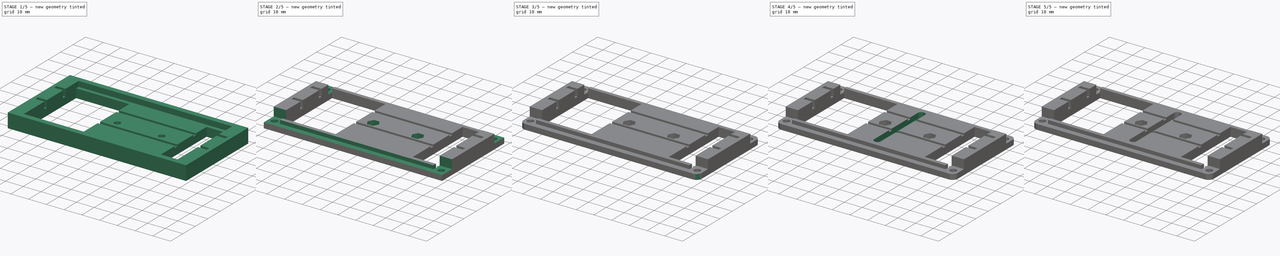
[diagram: build sequence overview — one tinted view per stage of 5, left to right]
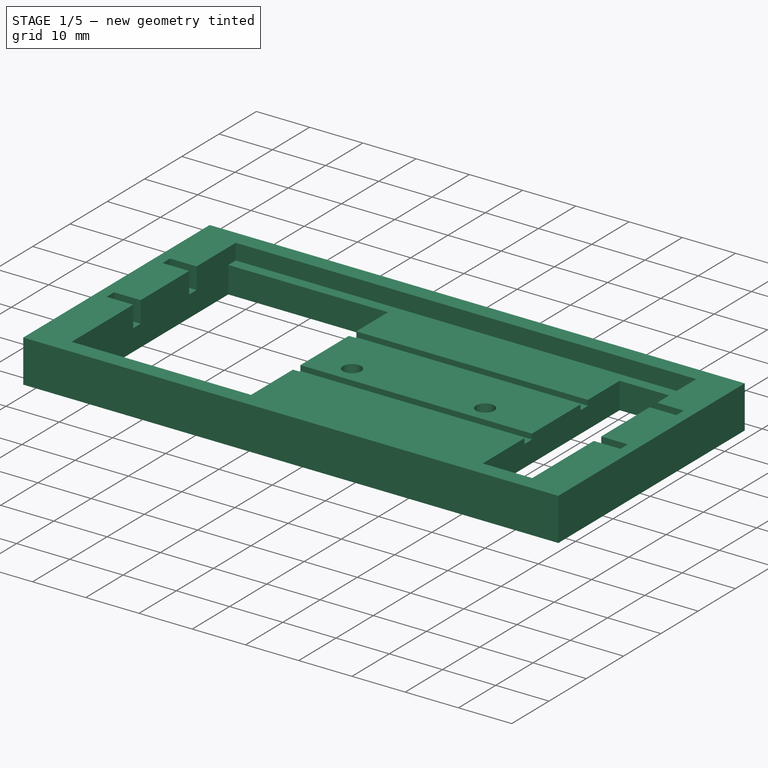
[diagram: stage 1 of 5 — iso view after this stage's code; geometry added in this stage tinted green]
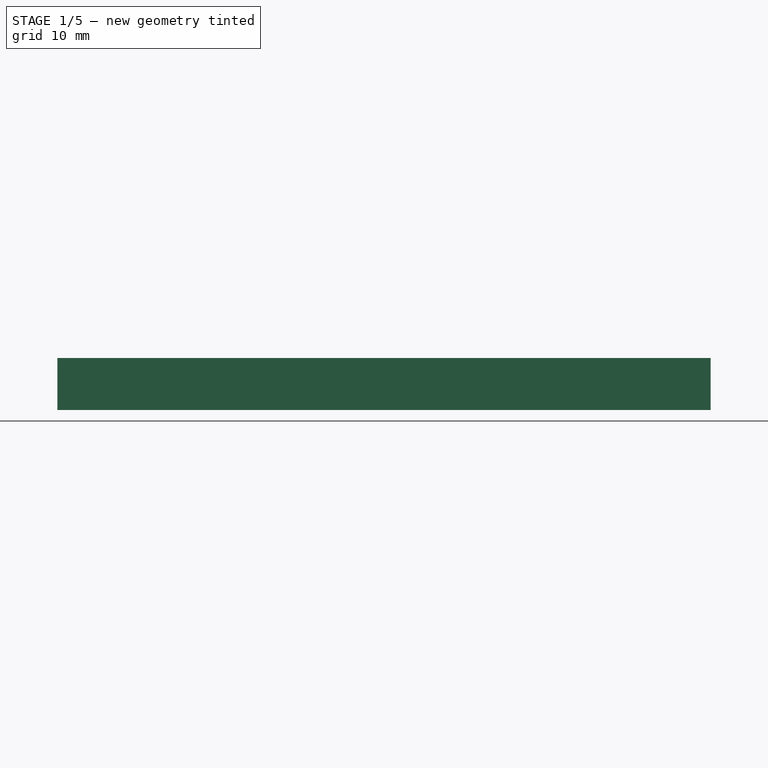
[diagram: stage 1 of 5 — front view after this stage's code; geometry added in this stage tinted green]
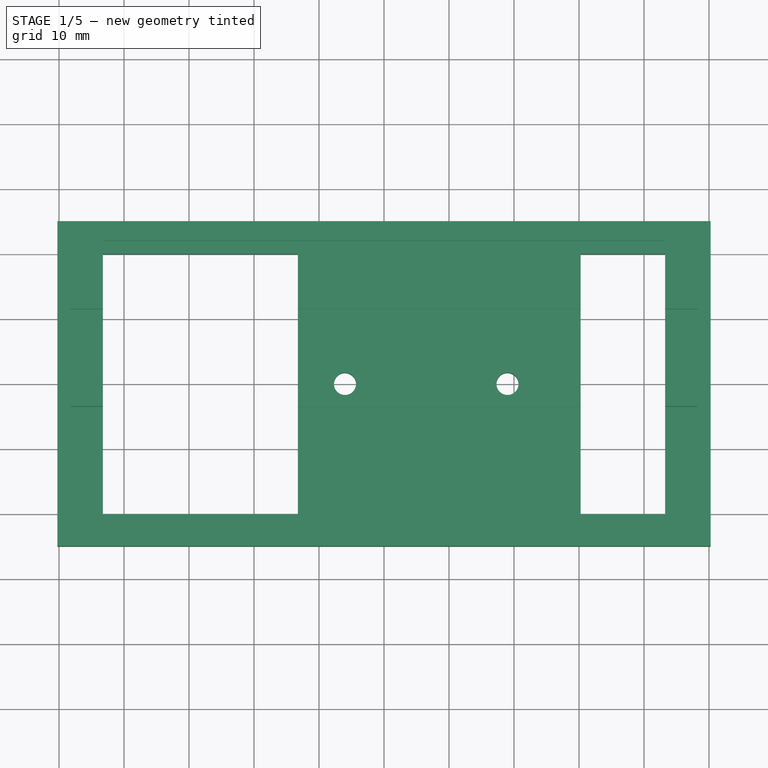
[diagram: stage 1 of 5 — top view after this stage's code; geometry added in this stage tinted green]
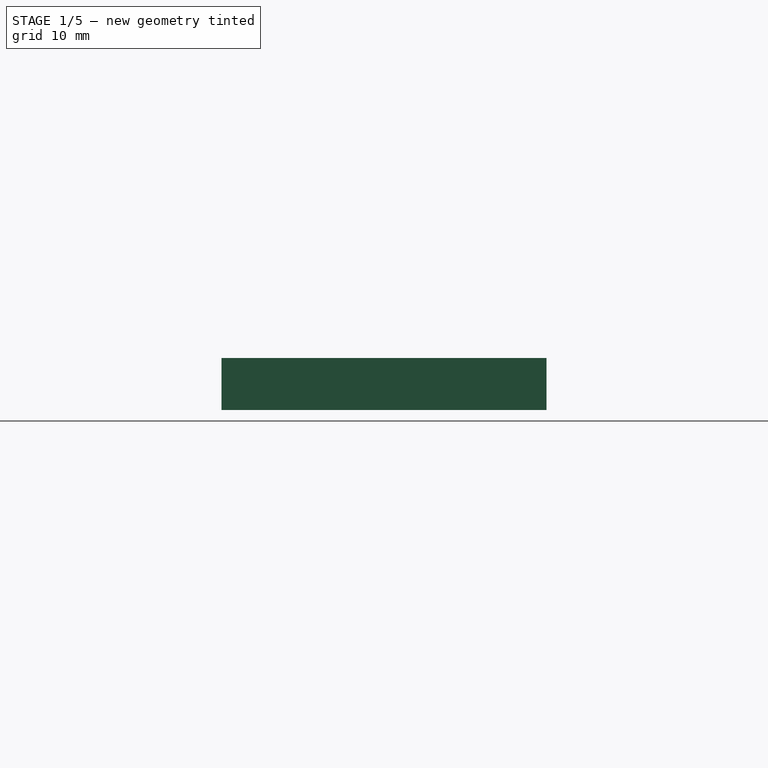
[diagram: stage 1 of 5 — right view after this stage's code; geometry added in this stage tinted green]
FCSTD DOCUMENT  (FreeCAD 0.16R6706 (Git))
Label: MotorDriverMountB
License: All rights reserved
LicenseURL: http://en.wikipedia.org/wiki/All_rights_reserved
objects: Sketcher::SketchObject×8, PartDesign::Pocket×7, PartDesign::Fillet×4, PartDesign::Chamfer×4, PartDesign::Pad×1
note: 32 computed .brp shape members not serialized (recipe doc carries the construction recipe); baked Part::Feature solids carry a one-line shape summary decoded from their .brp

FEATURE [Sketcher::SketchObject] Sketch
  sketch-geometry (35):
    g0: LineSegment StartX=-50.25 StartY=25 StartZ=0 EndX=50.25 EndY=25 EndZ=0
    g1: LineSegment StartX=50.25 StartY=25 StartZ=0 EndX=50.25 EndY=-25 EndZ=0
    g2: LineSegment StartX=50.25 StartY=-25 StartZ=0 EndX=-50.25 EndY=-25 EndZ=0
    g3: LineSegment StartX=-50.25 StartY=-25 StartZ=0 EndX=-50.25 EndY=25 EndZ=0
    g4: LineSegment [constr] StartX=-48.25 StartY=6 StartZ=0 EndX=48.25 EndY=6 EndZ=0
    g5: LineSegment [constr] StartX=48.25 StartY=6 StartZ=0 EndX=48.25 EndY=4 EndZ=0
    g6: LineSegment [constr] StartX=48.25 StartY=4 StartZ=0 EndX=-48.25 EndY=4 EndZ=0
    g7: LineSegment [constr] StartX=-48.25 StartY=4 StartZ=0 EndX=-48.25 EndY=6 EndZ=0
    g8: LineSegment [constr] StartX=-48.25 StartY=-14 StartZ=0 EndX=48.25 EndY=-14 EndZ=0
    g9: LineSegment [constr] StartX=48.25 StartY=-14 StartZ=0 EndX=48.25 EndY=-16 EndZ=0
    g10: LineSegment [constr] StartX=48.25 StartY=-16 StartZ=0 EndX=-48.25 EndY=-16 EndZ=0
    g11: LineSegment [constr] StartX=-48.25 StartY=-16 StartZ=0 EndX=-48.25 EndY=-14 EndZ=0
    g12: LineSegment [constr] StartX=-48.25 StartY=4 StartZ=0 EndX=-48.25 EndY=-14 EndZ=0
    g13: LineSegment [constr] StartX=48.25 StartY=4 StartZ=0 EndX=48.25 EndY=-14 EndZ=0
    g14: Circle [constr] CenterX=23.25 CenterY=0 CenterZ=0 NormalX=0 NormalY=0 NormalZ=1 Radius=19
    g15: LineSegment StartX=-43.25 StartY=20 StartZ=0 EndX=-13.25 EndY=20 EndZ=0
    g16: LineSegment StartX=-13.25 StartY=20 StartZ=0 EndX=-13.25 EndY=-20 EndZ=0
    g17: LineSegment StartX=-13.25 StartY=-20 StartZ=0 EndX=-43.25 EndY=-20 EndZ=0
    g18: LineSegment StartX=-43.25 StartY=-20 StartZ=0 EndX=-43.25 EndY=20 EndZ=0
    g19: LineSegment [constr] StartX=7.25 StartY=16 StartZ=0 EndX=39.25 EndY=16 EndZ=0
    g20: LineSegment [constr] StartX=39.25 StartY=16 StartZ=0 EndX=39.25 EndY=-16 EndZ=0
    g21: LineSegment [constr] StartX=39.25 StartY=-16 StartZ=0 EndX=7.25 EndY=-16 EndZ=0
    g22: LineSegment [constr] StartX=7.25 StartY=-16 StartZ=0 EndX=7.25 EndY=16 EndZ=0
    g23: Circle [constr] CenterX=7.25 CenterY=16 CenterZ=0 NormalX=0 NormalY=0 NormalZ=1 Radius=1.7
    g24: Circle [constr] CenterX=39.25 CenterY=16 CenterZ=0 NormalX=0 NormalY=0 NormalZ=1 Radius=1.7
    g25: Circle [constr] CenterX=39.25 CenterY=-16 CenterZ=0 NormalX=0 NormalY=0 NormalZ=1 Radius=1.7
    g26: Circle [constr] CenterX=7.25 CenterY=-16 CenterZ=0 NormalX=0 NormalY=0 NormalZ=1 Radius=1.7
    g27: LineSegment StartX=30.25 StartY=20 StartZ=0 EndX=43.25 EndY=20 EndZ=0
    g28: LineSegment StartX=43.25 StartY=20 StartZ=0 EndX=43.25 EndY=-20 EndZ=0
    g29: LineSegment StartX=43.25 StartY=-20 StartZ=0 EndX=30.25 EndY=-20 EndZ=0
    g30: LineSegment StartX=30.25 StartY=-20 StartZ=0 EndX=30.25 EndY=20 EndZ=0
    g31: LineSegment [constr] StartX=-13.25 StartY=20 StartZ=0 EndX=30.25 EndY=20 EndZ=0
    g32: LineSegment [constr] StartX=-13.25 StartY=-20 StartZ=0 EndX=30.25 EndY=-20 EndZ=0
    g33: Circle CenterX=-6 CenterY=0 CenterZ=0 NormalX=0 NormalY=0 NormalZ=1 Radius=1.7
    g34: Circle CenterX=19 CenterY=0 CenterZ=0 NormalX=0 NormalY=0 NormalZ=1 Radius=1.7
  constraints (96):
    c: Coincident(g0,g1)
    c: Coincident(g1,g2)
    c: Coincident(g2,g3)
    c: Coincident(g3,g0)
    c: Horizontal(g0)
    c: Horizontal(g2)
    c: Vertical(g1)
    c: Vertical(g3)
    c: Coincident(g4,g5)
    c: Coincident(g5,g6)
    c: Coincident(g6,g7)
    c: Coincident(g7,g4)
    c: Horizontal(g4)
    c: Horizontal(g6)
    c: Vertical(g5)
    c: Vertical(g7)
    c: Coincident(g8,g9)
    c: Coincident(g9,g10)
    c: Coincident(g10,g11)
    c: Coincident(g11,g8)
    c: Horizontal(g8)
    c: Horizontal(g10)
    c: Vertical(g9)
    c: Vertical(g11)
    c: Symmetric(g0,g2,g-1)
    c: DistanceY(g1,g0) = 50
    c: Symmetric(g4,g4,g-2)
    c: DistanceX(g4,g4) = 96.5
    c: DistanceX(g4,g0) = 2
    c: Coincident(g12,g6)
    c: Vertical(g12)
    c: Coincident(g8,g12)
    c: Coincident(g13,g5)
    c: Coincident(g13,g8)
    c: Vertical(g13)
    c: DistanceY(g6,g4) = 2
    c: DistanceY(g10,g8) = 2
    c: DistanceY(g8,g5) = 18
    c: PointOnObject(g14,g-1)
    c: Radius(g14) = 19
    c: DistanceX(g14,g0) = 27
    c: DistanceY(g1,g9) = 9
    c: Coincident(g15,g16)
    c: Coincident(g16,g17)
    c: Coincident(g17,g18)
    c: Coincident(g18,g15)
    c: Horizontal(g15)
    c: Horizontal(g17)
    c: Vertical(g16)
    c: Vertical(g18)
    c: Symmetric(g15,g17,g-1)
    c: DistanceX(g4,g15) = 5
    c: DistanceY(g17,g15) = 40
    c: DistanceX(g15,g15) = 30
    c: Coincident(g19,g20)
    c: Coincident(g20,g21)
    c: Coincident(g21,g22)
    c: Coincident(g22,g19)
    c: Horizontal(g19)
    c: Horizontal(g21)
    c: Vertical(g20)
    c: Vertical(g22)
    c: Symmetric(g20,g19,g14)
    c: DistanceX(g19,g19) = 32
    c: Coincident(g23,g19)
    c: Coincident(g24,g19)
    c: Radius(g26) = 1.7
    c: Equal(g26,g25)
    c: Equal(g26,g24)
    c: Equal(g26,g23)
    c: Coincident(g26,g21)
    c: Coincident(g25,g20)
    c: Equal(g22,g19)
    c: DistanceX(g2,g1) = 100.5
    c: Coincident(g27,g28)
    c: Coincident(g28,g29)
    c: Coincident(g29,g30)
    c: Coincident(g30,g27)
    c: Horizontal(g27)
    c: Horizontal(g29)
    c: Vertical(g28)
    c: Vertical(g30)
    c: Coincident(g31,g15)
    c: Horizontal(g31)
    c: Coincident(g32,g16)
    c: Coincident(g32,g29)
    c: Horizontal(g32)
    c: Coincident(g31,g27)
    c: DistanceX(g29,g28) = 13
    c: DistanceX(g28,g9) = 5
    c: Radius(g34) = 1.7
    c: Equal(g34,g33)
    c: PointOnObject(g34,g-1)
    c: PointOnObject(g33,g-1)
    c: DistanceX(g33,g34) = 25
    c: DistanceX(g33,g-1) = 6
FEATURE [PartDesign::Pad] Pad
  Length = 8
  Length2 = 100
  Sketch = -> Sketch
  Type = 0
FEATURE [Sketcher::SketchObject] Sketch001
  Placement = pos=(0,0,8) rot=(0,0,1;0rad)
  Support = -> Pad [Face16]
  sketch-geometry (4):
    g0: LineSegment StartX=-43.25 StartY=22 StartZ=0 EndX=43.25 EndY=22 EndZ=0
    g1: LineSegment StartX=43.25 StartY=22 StartZ=0 EndX=43.25 EndY=-22 EndZ=0
    g2: LineSegment StartX=43.25 StartY=-22 StartZ=0 EndX=-43.25 EndY=-22 EndZ=0
    g3: LineSegment StartX=-43.25 StartY=-22 StartZ=0 EndX=-43.25 EndY=22 EndZ=0
  constraints (11):
    c: Coincident(g0,g1)
    c: Coincident(g1,g2)
    c: Coincident(g2,g3)
    c: Coincident(g3,g0)
    c: Horizontal(g0)
    c: Horizontal(g2)
    c: Vertical(g1)
    c: Vertical(g3)
    c: Symmetric(g0,g1,g-1)
    c: DistanceY(g2,g0) = 44
    c: DistanceX(g0,g0) = 86.5
FEATURE [PartDesign::Pocket] Pocket
  Length = 3
  Sketch = -> Sketch001
  Type = 0
FEATURE [Sketcher::SketchObject] Sketch002
  Placement = pos=(0,0,8) rot=(0,0,1;0rad)
  Support = -> Pocket [Face5]
  sketch-geometry (10):
    g0: LineSegment StartX=-48.25 StartY=11.5 StartZ=0 EndX=48.25 EndY=11.5 EndZ=0
    g1: LineSegment StartX=48.25 StartY=11.5 StartZ=0 EndX=48.25 EndY=9.5 EndZ=0
    g2: LineSegment StartX=48.25 StartY=9.5 StartZ=0 EndX=-48.25 EndY=9.5 EndZ=0
    g3: LineSegment StartX=-48.25 StartY=9.5 StartZ=0 EndX=-48.25 EndY=11.5 EndZ=0
    g4: LineSegment StartX=-48.25 StartY=-3.5 StartZ=0 EndX=48.25 EndY=-3.5 EndZ=0
    g5: LineSegment StartX=48.25 StartY=-3.5 StartZ=0 EndX=48.25 EndY=-5.5 EndZ=0
    g6: LineSegment StartX=48.25 StartY=-5.5 StartZ=0 EndX=-48.25 EndY=-5.5 EndZ=0
    g7: LineSegment StartX=-48.25 StartY=-5.5 StartZ=0 EndX=-48.25 EndY=-3.5 EndZ=0
    g8: LineSegment [constr] StartX=-48.25 StartY=9.5 StartZ=0 EndX=-48.25 EndY=-3.5 EndZ=0
    g9: LineSegment [constr] StartX=48.25 StartY=9.5 StartZ=0 EndX=48.25 EndY=-3.5 EndZ=0
  constraints (28):
    c: Coincident(g0,g1)
    c: Coincident(g1,g2)
    c: Coincident(g2,g3)
    c: Coincident(g3,g0)
    c: Horizontal(g0)
    c: Horizontal(g2)
    c: Vertical(g1)
    c: Vertical(g3)
    c: Coincident(g4,g5)
    c: Coincident(g5,g6)
    c: Coincident(g6,g7)
    c: Coincident(g7,g4)
    c: Horizontal(g4)
    c: Horizontal(g6)
    c: Vertical(g5)
    c: Vertical(g7)
    c: Symmetric(g0,g0,g-2)
    c: DistanceY(g1,g0) = 2
    c: DistanceX(g0,g0) = 96.5
    c: DistanceY(g5,g4) = 2
    c: Coincident(g8,g2)
    c: Coincident(g8,g4)
    c: Vertical(g8)
    c: Coincident(g9,g1)
    c: Coincident(g9,g4)
    c: Vertical(g9)
    c: DistanceY(g4,g0) = 15
    c: DistanceY(g-1,g2) = 9.5
FEATURE [PartDesign::Pocket] Pocket001
  Length = 4
  Sketch = -> Sketch002
  Type = 0
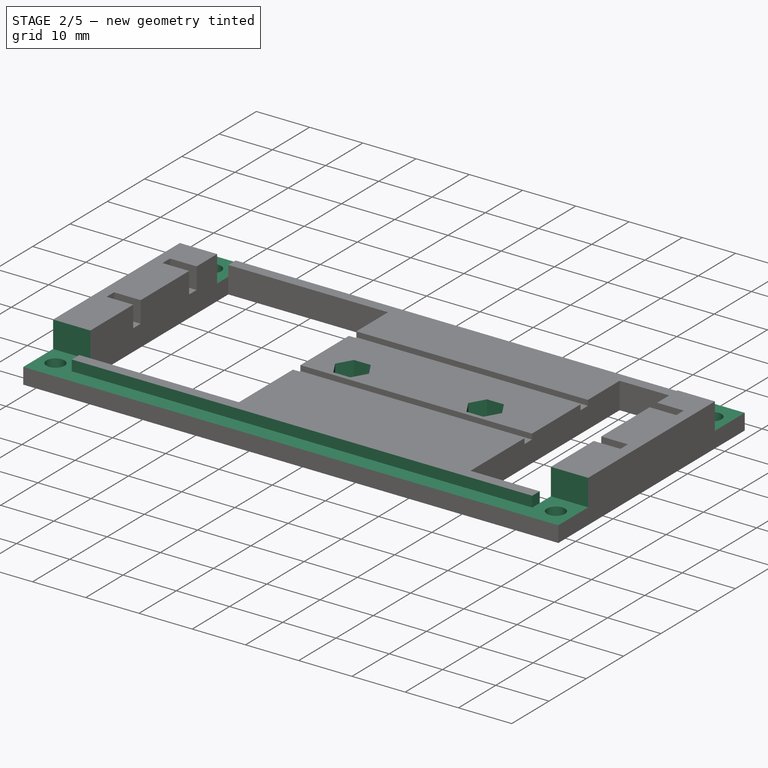
[diagram: stage 2 of 5 — iso view after this stage's code; geometry added in this stage tinted green]
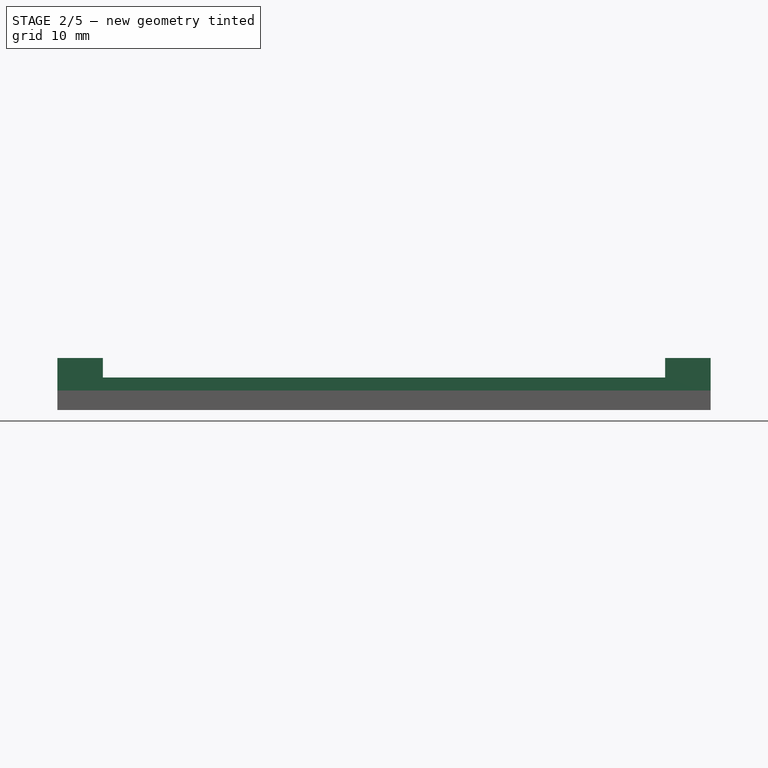
[diagram: stage 2 of 5 — front view after this stage's code; geometry added in this stage tinted green]
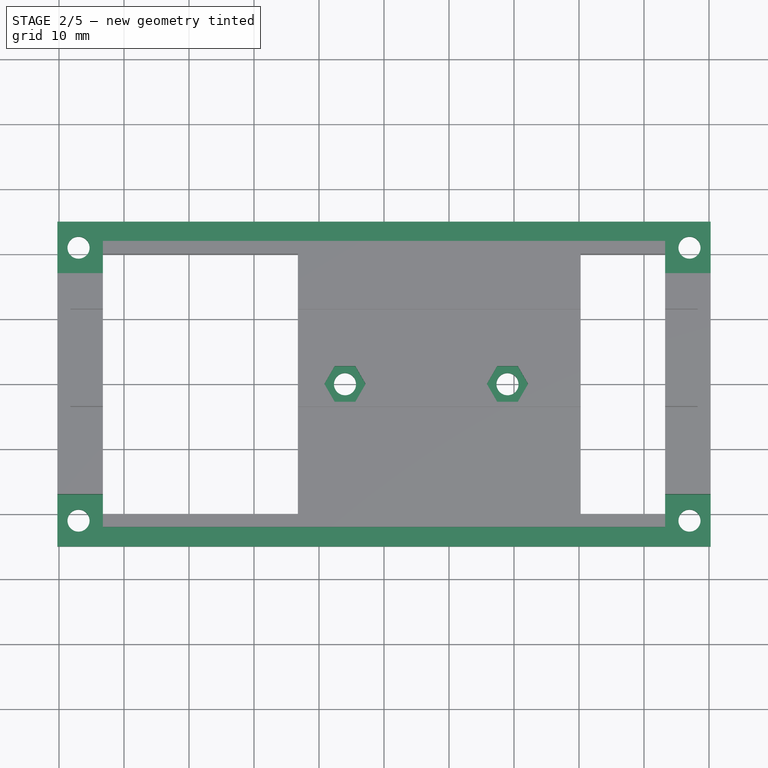
[diagram: stage 2 of 5 — top view after this stage's code; geometry added in this stage tinted green]
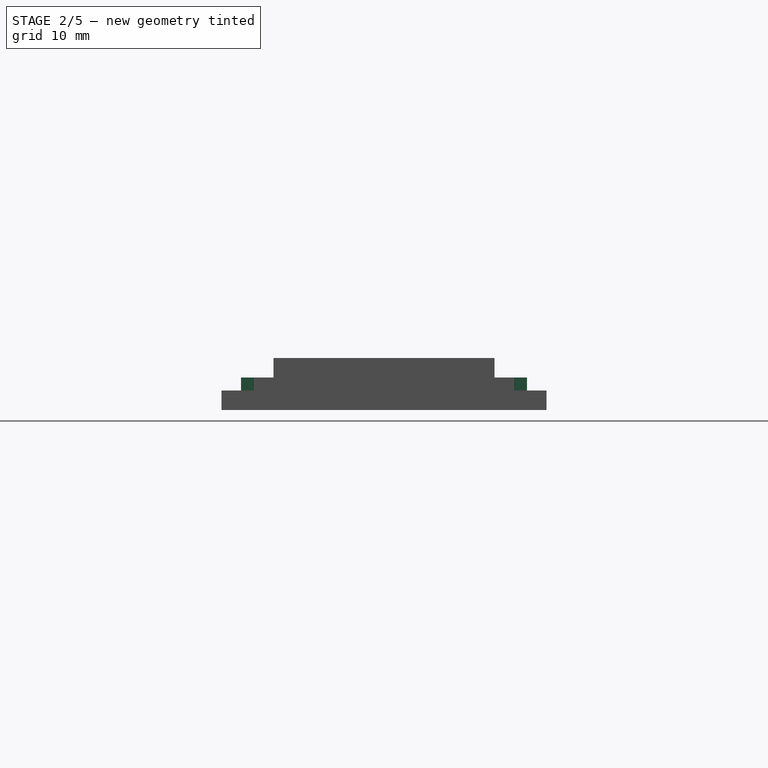
[diagram: stage 2 of 5 — right view after this stage's code; geometry added in this stage tinted green]
FEATURE [Sketcher::SketchObject] Sketch004
  Placement = pos=(0,0,8) rot=(0,0,1;0rad)
  Support = -> Pocket001 [Face5]
  sketch-geometry (18):
    g0: LineSegment StartX=-50.25 StartY=25 StartZ=0 EndX=50.25 EndY=25 EndZ=0
    g1: LineSegment StartX=50.25 StartY=25 StartZ=0 EndX=50.25 EndY=17 EndZ=0
    g2: LineSegment StartX=-50.25 StartY=17 StartZ=0 EndX=-50.25 EndY=25 EndZ=0
    g3: LineSegment StartX=50.25 StartY=-17 StartZ=0 EndX=50.25 EndY=-25 EndZ=0
    g4: LineSegment StartX=50.25 StartY=-25 StartZ=0 EndX=-50.25 EndY=-25 EndZ=0
    g5: LineSegment StartX=-50.25 StartY=-25 StartZ=0 EndX=-50.25 EndY=-17 EndZ=0
    g6: LineSegment [constr] StartX=-50.25 StartY=17 StartZ=0 EndX=-50.25 EndY=-17 EndZ=0
    g7: LineSegment [constr] StartX=50.25 StartY=17 StartZ=0 EndX=50.25 EndY=-17 EndZ=0
    g8: LineSegment StartX=-50.25 StartY=17 StartZ=0 EndX=-43.25 EndY=17 EndZ=0
    g9: LineSegment StartX=-43.25 StartY=17 StartZ=0 EndX=-43.25 EndY=22 EndZ=0
    g10: LineSegment StartX=-43.25 StartY=22 StartZ=0 EndX=43.25 EndY=22 EndZ=0
    g11: LineSegment StartX=50.25 StartY=17 StartZ=0 EndX=43.25 EndY=17 EndZ=0
    g12: LineSegment StartX=43.25 StartY=22 StartZ=0 EndX=43.25 EndY=17 EndZ=0
    g13: LineSegment StartX=-50.25 StartY=-17 StartZ=0 EndX=-43.25 EndY=-17 EndZ=0
    g14: LineSegment StartX=-43.25 StartY=-17 StartZ=0 EndX=-43.25 EndY=-22 EndZ=0
    g15: LineSegment StartX=-43.25 StartY=-22 StartZ=0 EndX=43.25 EndY=-22 EndZ=0
    g16: LineSegment StartX=43.25 StartY=-22 StartZ=0 EndX=43.25 EndY=-17 EndZ=0
    g17: LineSegment StartX=43.25 StartY=-17 StartZ=0 EndX=50.25 EndY=-17 EndZ=0
  constraints (48):
    c: Coincident(g0,g1)
    c: Coincident(g2,g0)
    c: Horizontal(g0)
    c: Vertical(g1)
    c: Vertical(g2)
    c: Coincident(g3,g4)
    c: Coincident(g4,g5)
    c: Horizontal(g4)
    c: Vertical(g3)
    c: Vertical(g5)
    c: Vertical(g6)
    c: Coincident(g7,g1)
    c: Vertical(g7)
    c: Equal(g5,g2)
    c: DistanceX(g0,g0) = 100.5
    c: Symmetric(g4,g0,g-1)
    c: DistanceY(g3,g0) = 50
    c: Coincident(g6,g5)
    c: Coincident(g2,g6)
    c: Coincident(g7,g3)
    c: Horizontal(g8)
    c: Coincident(g9,g8)
    c: Vertical(g9)
    c: Coincident(g10,g9)
    c: Horizontal(g10)
    c: Coincident(g11,g1)
    c: Horizontal(g11)
    c: Coincident(g12,g11)
    c: Vertical(g12)
    c: Coincident(g12,g10)
    c: DistanceY(g9,g0) = 3
    c: DistanceX(g2,g8) = 7
    c: DistanceY(g2,g0) = 8
    c: Symmetric(g11,g8,g-2)
    c: Coincident(g5,g13)
    c: Horizontal(g13)
    c: Coincident(g13,g14)
    c: Vertical(g14)
    c: Coincident(g14,g15)
    c: Horizontal(g15)
    c: Coincident(g15,g16)
    c: Vertical(g16)
    c: Coincident(g16,g17)
    c: Horizontal(g17)
    c: Coincident(g3,g17)
    c: Symmetric(g16,g11,g-1)
    c: Symmetric(g14,g9,g-1)
    c: Coincident(g8,g2)
FEATURE [PartDesign::Pocket] Pocket003
  Length = 5
  Sketch = -> Sketch004
  Type = 0
FEATURE [Sketcher::SketchObject] Sketch005
  Placement = pos=(0,0,3) rot=(0,0,1;0rad)
  Support = -> Pocket003 [Face4]
  sketch-geometry (8):
    g0: Circle CenterX=-47 CenterY=21 CenterZ=0 NormalX=0 NormalY=0 NormalZ=1 Radius=1.7
    g1: LineSegment [constr] StartX=-47 StartY=21 StartZ=0 EndX=47 EndY=21 EndZ=0
    g2: LineSegment [constr] StartX=47 StartY=21 StartZ=0 EndX=47 EndY=-21 EndZ=0
    g3: LineSegment [constr] StartX=47 StartY=-21 StartZ=0 EndX=-47 EndY=-21 EndZ=0
    g4: LineSegment [constr] StartX=-47 StartY=-21 StartZ=0 EndX=-47 EndY=21 EndZ=0
    g5: Circle CenterX=47 CenterY=21 CenterZ=0 NormalX=0 NormalY=0 NormalZ=1 Radius=1.7
    g6: Circle CenterX=47 CenterY=-21 CenterZ=0 NormalX=0 NormalY=0 NormalZ=1 Radius=1.7
    g7: Circle CenterX=-47 CenterY=-21 CenterZ=0 NormalX=0 NormalY=0 NormalZ=1 Radius=1.7
  constraints (19):
    c: Coincident(g1,g2)
    c: Coincident(g2,g3)
    c: Coincident(g3,g4)
    c: Coincident(g4,g1)
    c: Horizontal(g1)
    c: Horizontal(g3)
    c: Vertical(g2)
    c: Vertical(g4)
    c: Coincident(g1,g0)
    c: Symmetric(g0,g2,g-1)
    c: Coincident(g5,g1)
    c: Coincident(g6,g2)
    c: Coincident(g7,g3)
    c: Radius(g5) = 1.7
    c: Equal(g5,g6)
    c: Equal(g5,g7)
    c: Equal(g5,g0)
    c: DistanceY(g3,g0) = 42
    c: DistanceX(g0,g1) = 94
FEATURE [PartDesign::Pocket] Pocket004
  Length = 5
  Sketch = -> Sketch005
  Type = 1
FEATURE [Sketcher::SketchObject] Sketch006
  Placement = pos=(0,0,5) rot=(0,0,1;0rad)
  Support = -> Pocket004 [Face31]
  sketch-geometry (14):
    g0: LineSegment StartX=-7.58771 StartY=2.75 StartZ=0 EndX=-9.17543 EndY=-1e-12 EndZ=0
    g1: LineSegment StartX=-9.17543 StartY=-1e-12 StartZ=0 EndX=-7.58771 EndY=-2.75 EndZ=0
    g2: LineSegment StartX=-7.58771 StartY=-2.75 StartZ=0 EndX=-4.41229 EndY=-2.75 EndZ=0
    g3: LineSegment StartX=-4.41229 StartY=-2.75 StartZ=0 EndX=-2.82457 EndY=-1e-12 EndZ=0
    g4: LineSegment StartX=-2.82457 StartY=-1e-12 StartZ=0 EndX=-4.41229 EndY=2.75 EndZ=0
    g5: LineSegment StartX=-4.41229 StartY=2.75 StartZ=0 EndX=-7.58771 EndY=2.75 EndZ=0
    g6: Circle [constr] CenterX=-6 CenterY=0 CenterZ=0 NormalX=0 NormalY=0 NormalZ=1 Radius=3.17543
    g7: LineSegment StartX=17.4123 StartY=2.75 StartZ=0 EndX=15.8246 EndY=0 EndZ=0
    g8: LineSegment StartX=15.8246 StartY=0 StartZ=0 EndX=17.4123 EndY=-2.75 EndZ=0
    g9: LineSegment StartX=17.4123 StartY=-2.75 StartZ=0 EndX=20.5877 EndY=-2.75 EndZ=0
    g10: LineSegment StartX=20.5877 StartY=-2.75 StartZ=0 EndX=22.1754 EndY=0 EndZ=0
    g11: LineSegment StartX=22.1754 StartY=0 StartZ=0 EndX=20.5877 EndY=2.75 EndZ=0
    g12: LineSegment StartX=20.5877 StartY=2.75 StartZ=0 EndX=17.4123 EndY=2.75 EndZ=0
    g13: Circle [constr] CenterX=19 CenterY=0 CenterZ=0 NormalX=0 NormalY=0 NormalZ=1 Radius=3.17543
  constraints (34):
    c: Coincident(g0,g1)
    c: Coincident(g1,g2)
    c: Coincident(g2,g3)
    c: Coincident(g3,g4)
    c: Coincident(g4,g5)
    c: Coincident(g5,g0)
    c: Equal(g0, g1-g5) x5
    c: PointOnObject(g0,g6)
    c: PointOnObject(g1,g6)
    c: PointOnObject(g2,g6)
    c: PointOnObject(g3,g6)
    c: PointOnObject(g4,g6)
    c: PointOnObject(g5,g6)
    c: PointOnObject(g6,g-1)
    c: Coincident(g7,g8)
    c: Coincident(g8,g9)
    c: Coincident(g9,g10)
    c: Coincident(g10,g11)
    c: Coincident(g11,g12)
    c: Coincident(g12,g7)
    c: Equal(g7, g8-g12) x5
    c: PointOnObject(g7,g13)
    c: PointOnObject(g8,g13)
    c: PointOnObject(g9,g13)
    c: PointOnObject(g10,g13)
    c: PointOnObject(g11,g13)
    c: PointOnObject(g12,g13)
    c: PointOnObject(g13,g-1)
    c: DistanceX(g6,g13) = 25
    c: DistanceX(g6,g-1) = 6
    c: Horizontal(g2)
    c: Horizontal(g9)
    c: DistanceY(g9,g11) = 5.5
    c: DistanceY(g2,g4) = 5.5
FEATURE [PartDesign::Pocket] Pocket005
  Length = 3
  Sketch = -> Sketch006
  Type = 0
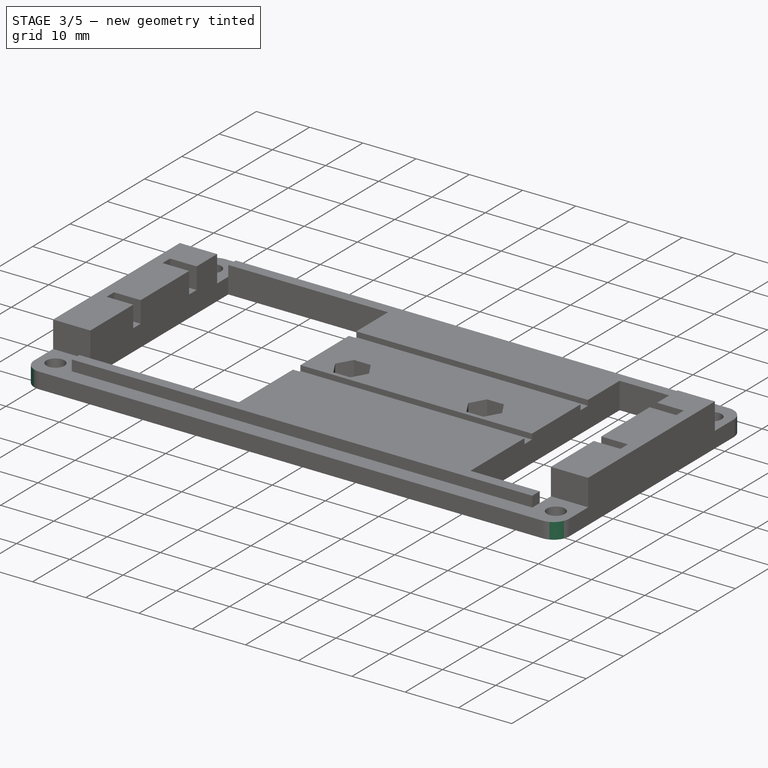
[diagram: stage 3 of 5 — iso view after this stage's code; geometry added in this stage tinted green]
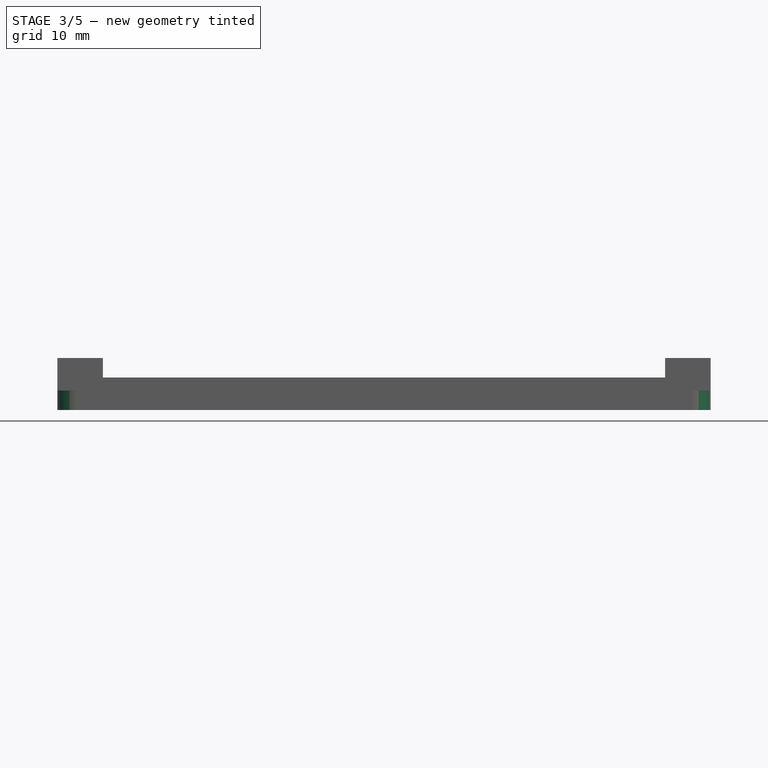
[diagram: stage 3 of 5 — front view after this stage's code; geometry added in this stage tinted green]
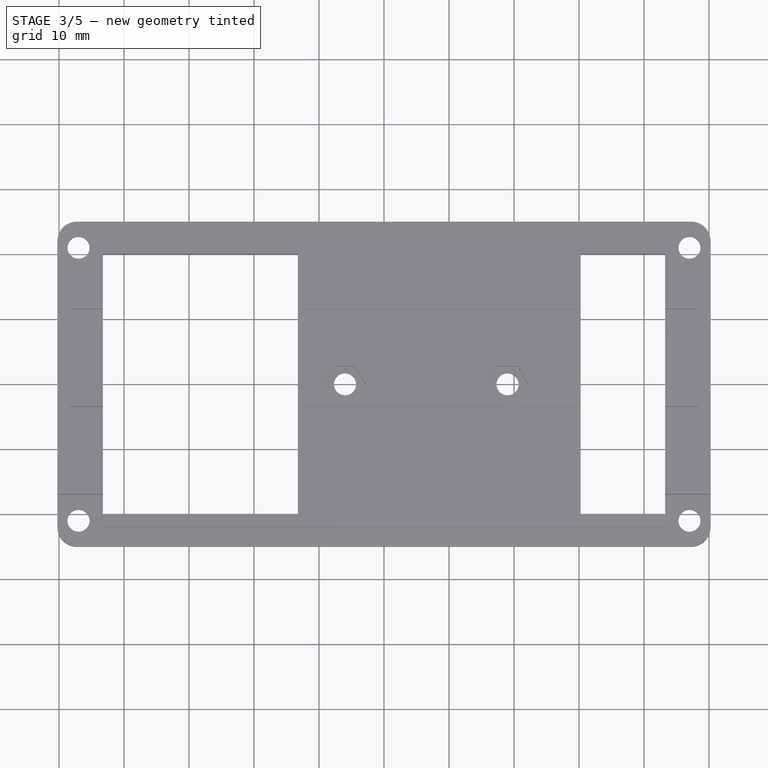
[diagram: stage 3 of 5 — top view after this stage's code; geometry added in this stage tinted green]
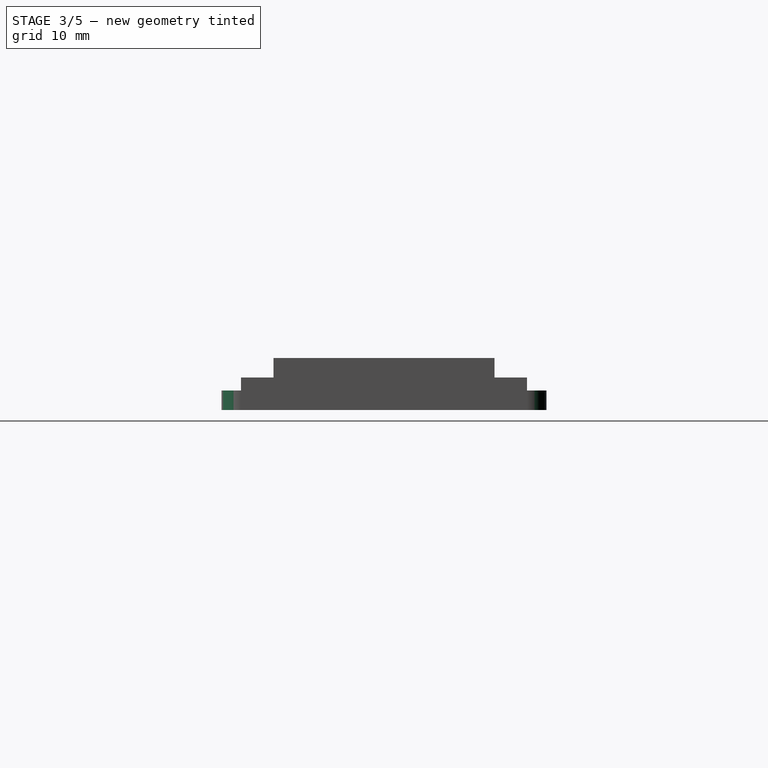
[diagram: stage 3 of 5 — right view after this stage's code; geometry added in this stage tinted green]
FEATURE [PartDesign::Fillet] Fillet
  Base = -> Pocket005 [Edge42]
  Radius = 3
FEATURE [PartDesign::Fillet] Fillet001
  Base = -> Fillet [Edge21]
  Radius = 3
FEATURE [PartDesign::Fillet] Fillet002
  Base = -> Fillet001 [Edge34]
  Radius = 3
FEATURE [PartDesign::Fillet] Fillet003
  Base = -> Fillet002 [Edge29]
  Radius = 3
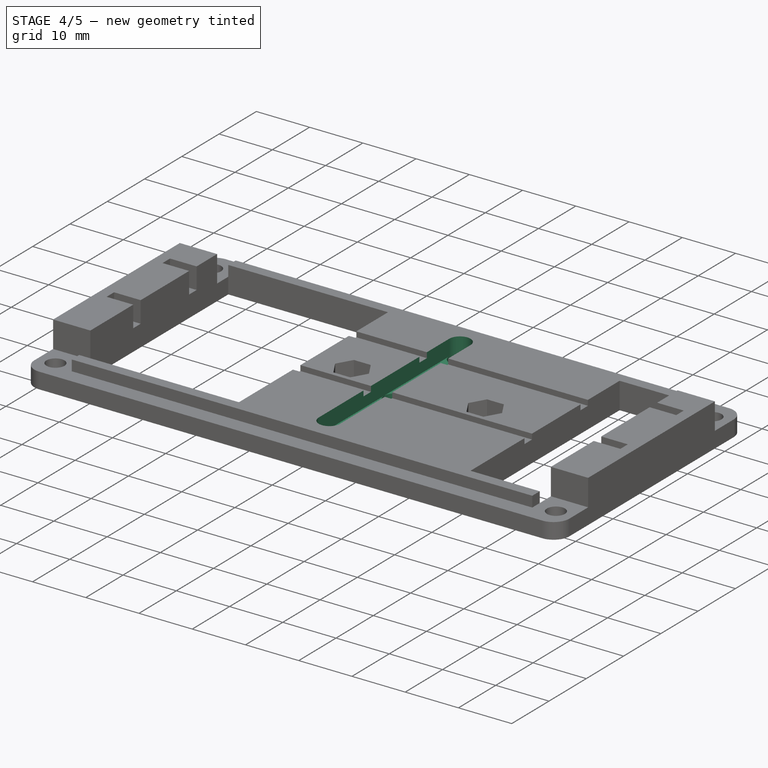
[diagram: stage 4 of 5 — iso view after this stage's code; geometry added in this stage tinted green]
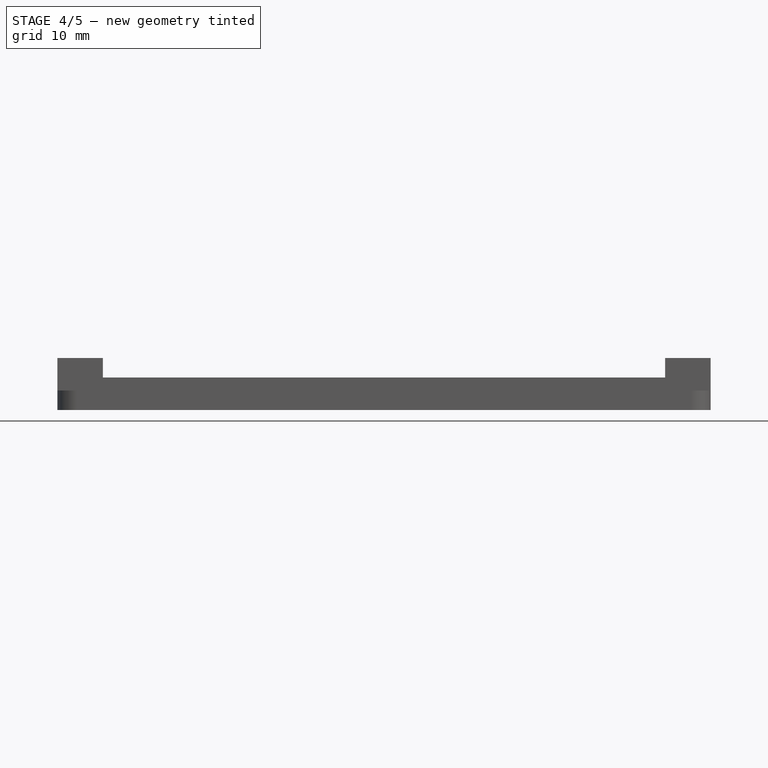
[diagram: stage 4 of 5 — front view after this stage's code; geometry added in this stage tinted green]
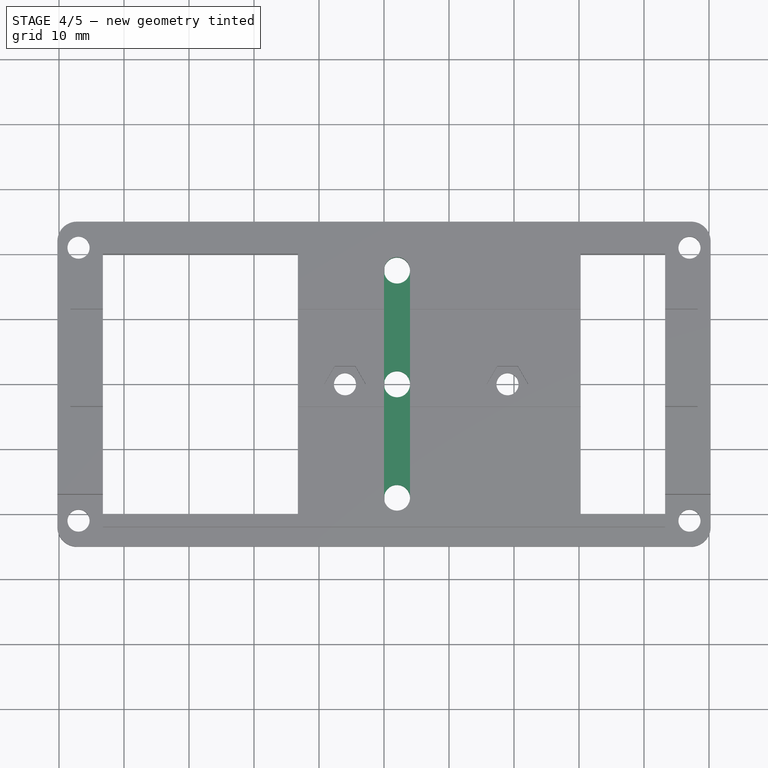
[diagram: stage 4 of 5 — top view after this stage's code; geometry added in this stage tinted green]
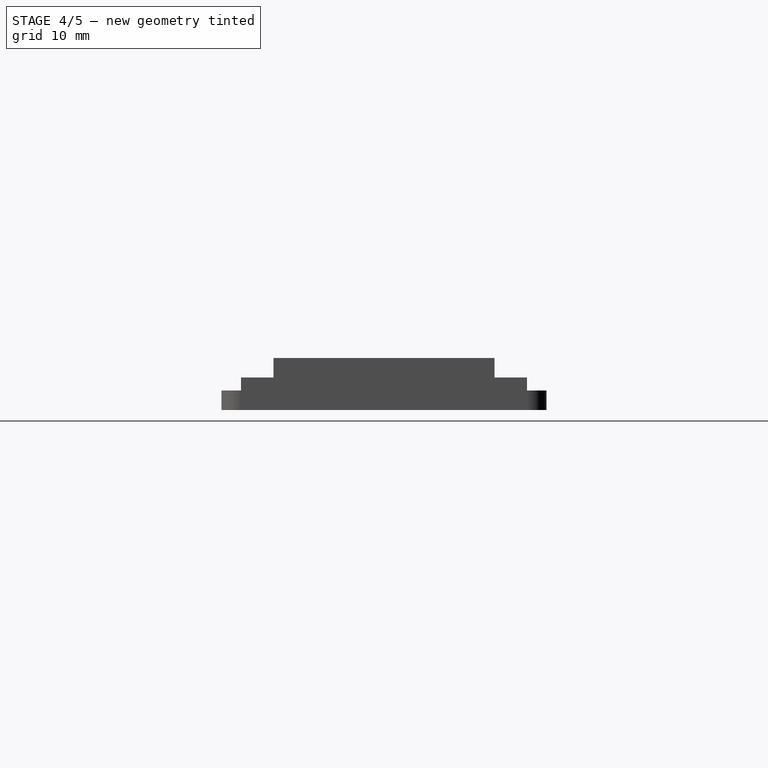
[diagram: stage 4 of 5 — right view after this stage's code; geometry added in this stage tinted green]
FEATURE [Sketcher::SketchObject] Sketch007
  Placement = pos=(0,0,5) rot=(0,0,1;0rad)
  Support = -> Fillet003 [Face44]
  sketch-geometry (4):
    g0: LineSegment StartX=0 StartY=17.5 StartZ=0 EndX=4 EndY=17.5 EndZ=0
    g1: LineSegment StartX=4 StartY=17.5 StartZ=0 EndX=4 EndY=-17.5 EndZ=0
    g2: LineSegment StartX=4 StartY=-17.5 StartZ=0 EndX=0 EndY=-17.5 EndZ=0
    g3: LineSegment StartX=0 StartY=-17.5 StartZ=0 EndX=0 EndY=17.5 EndZ=0
  constraints (11):
    c: Coincident(g0,g1)
    c: Coincident(g1,g2)
    c: Coincident(g2,g3)
    c: Coincident(g3,g0)
    c: Horizontal(g0)
    c: Horizontal(g2)
    c: Vertical(g1)
    c: Vertical(g3)
    c: Symmetric(g2,g0,g-1)
    c: DistanceY(g2,g0) = 35
    c: DistanceX(g2,g1) = 4
FEATURE [PartDesign::Pocket] Pocket006
  Length = 3
  Sketch = -> Sketch007
  Type = 0
FEATURE [Sketcher::SketchObject] Sketch008
  Placement = pos=(0,0,5) rot=(0,0,1;0rad)
  Support = -> Pocket006 [Face33]
  sketch-geometry (4):
    g0: Circle CenterX=2 CenterY=17.5 CenterZ=0 NormalX=0 NormalY=0 NormalZ=1 Radius=2
    g1: Circle CenterX=2 CenterY=0 CenterZ=0 NormalX=0 NormalY=0 NormalZ=1 Radius=2
    g2: Circle CenterX=2 CenterY=-17.5 CenterZ=0 NormalX=0 NormalY=0 NormalZ=1 Radius=2
    g3: LineSegment [constr] StartX=2 StartY=17.5 StartZ=0 EndX=2 EndY=-17.5 EndZ=0
  constraints (11):
    c: PointOnObject(g1,g-1)
    c: Radius(g0) = 2
    c: Equal(g0,g1)
    c: Equal(g0,g2)
    c: Coincident(g3,g0)
    c: Coincident(g3,g2)
    c: Vertical(g3)
    c: PointOnObject(g1,g3)
    c: Symmetric(g2,g0,g1)
    c: DistanceY(g2,g0) = 35
    c: DistanceX(g-1,g1) = 2
FEATURE [PartDesign::Pocket] Pocket007
  Length = 5
  Sketch = -> Sketch008
  Type = 1
FEATURE [PartDesign::Chamfer] Chamfer
  Base = -> Pocket007 [Edge24]
  Size = 1.5
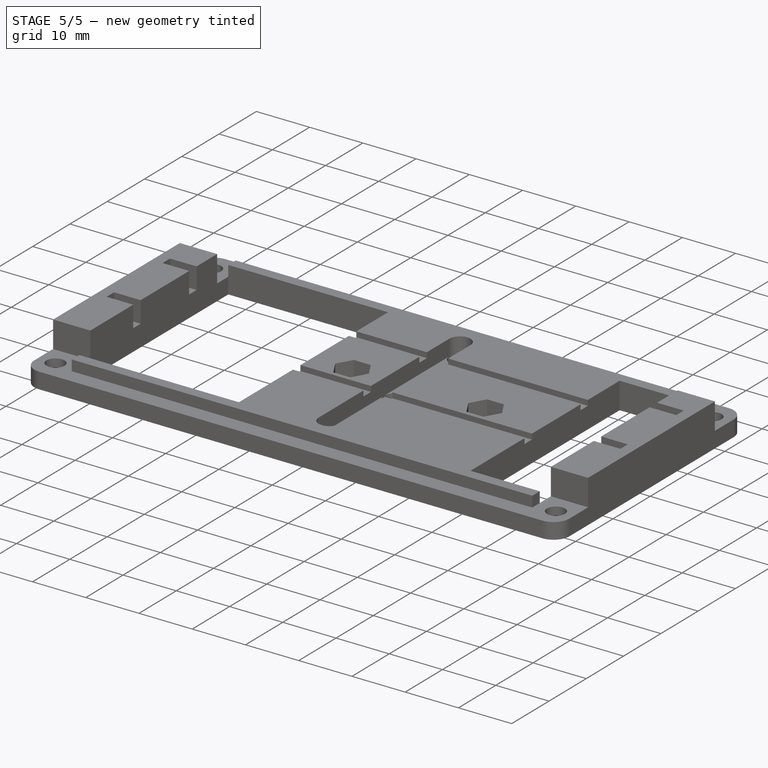
[diagram: stage 5 of 5 — iso view after this stage's code; geometry added in this stage tinted green]
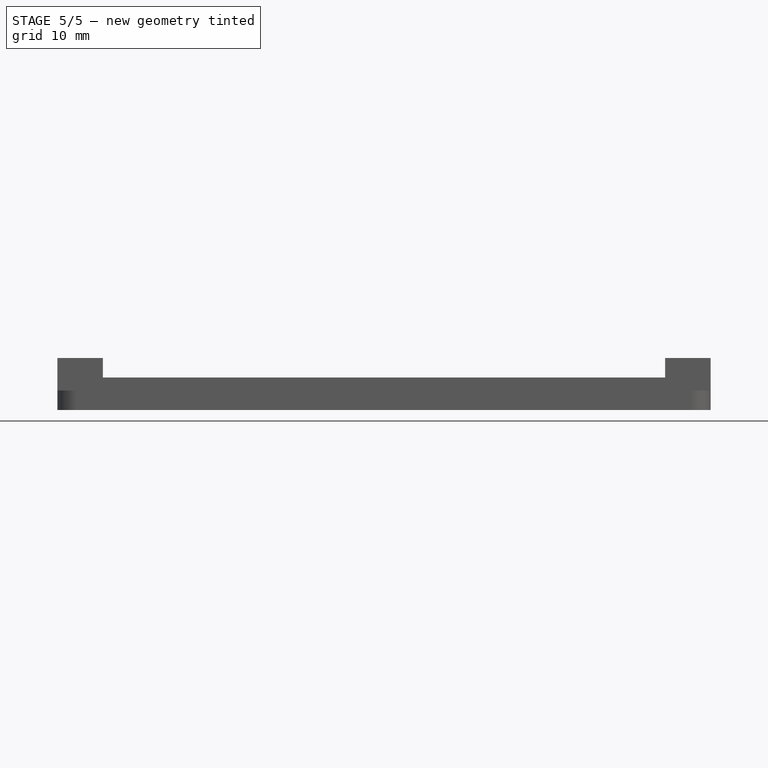
[diagram: stage 5 of 5 — front view after this stage's code; geometry added in this stage tinted green]
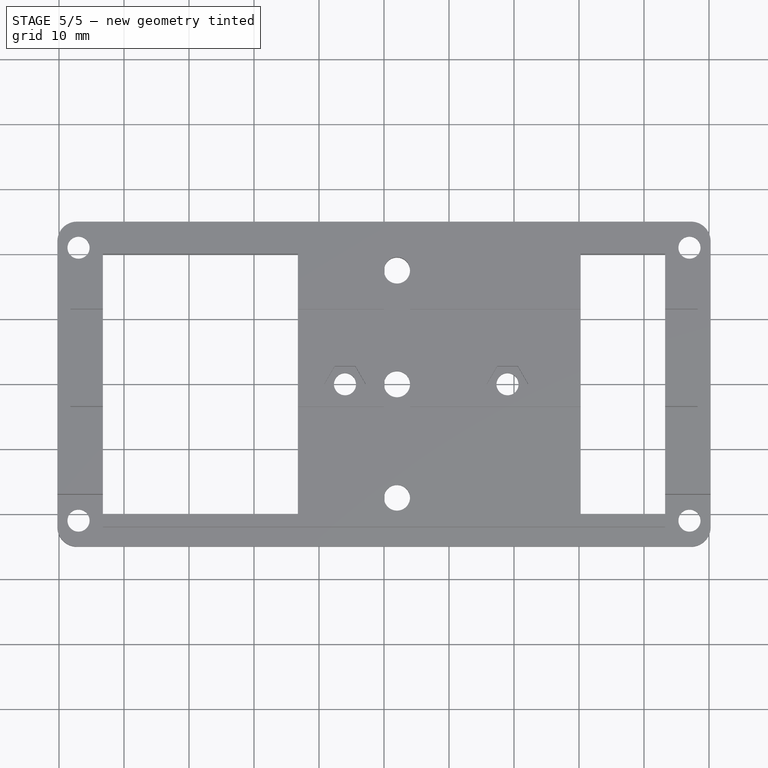
[diagram: stage 5 of 5 — top view after this stage's code; geometry added in this stage tinted green]
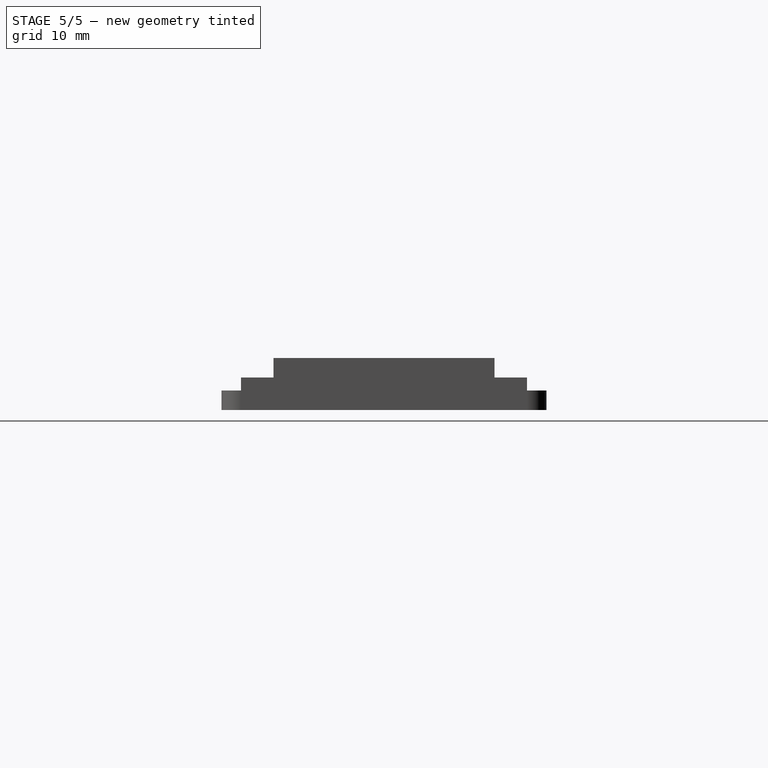
[diagram: stage 5 of 5 — right view after this stage's code; geometry added in this stage tinted green]
FEATURE [PartDesign::Chamfer] Chamfer001
  Base = -> Chamfer [Edge25]
  Size = 1.5
FEATURE [PartDesign::Chamfer] Chamfer002
  Base = -> Chamfer001 [Edge15]
  Size = 1.5
FEATURE [PartDesign::Chamfer] Chamfer003
  Base = -> Chamfer002 [Edge16]
  Size = 1.5
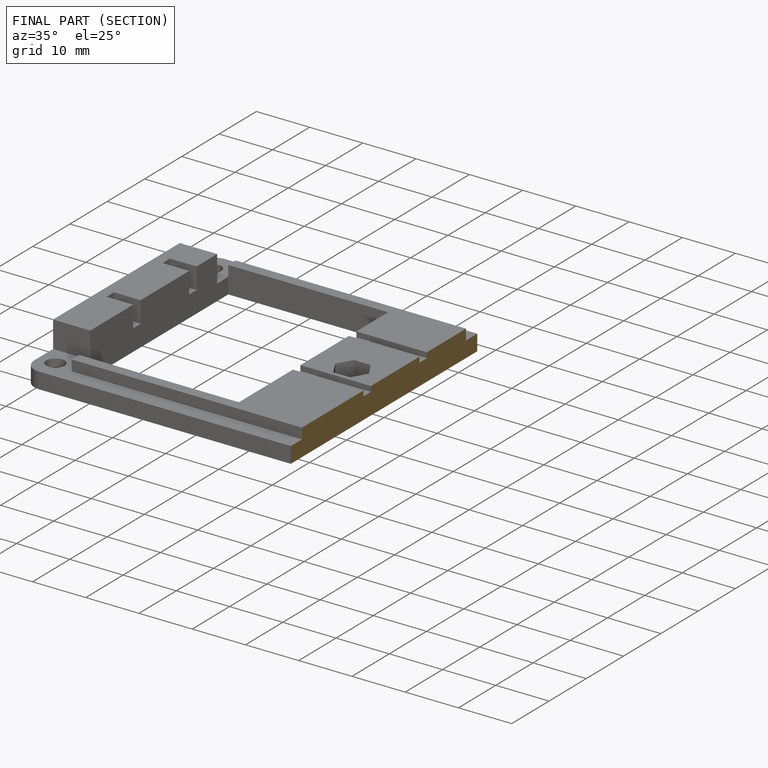
[diagram: finished part — half-section view (interior)]
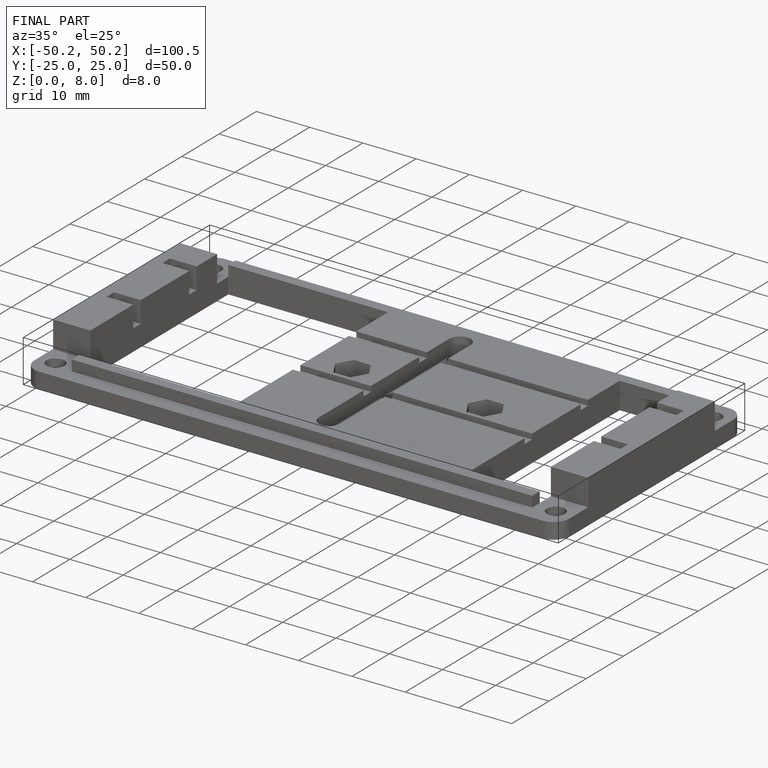
[diagram: finished part — iso view with bounding-box wireframe]
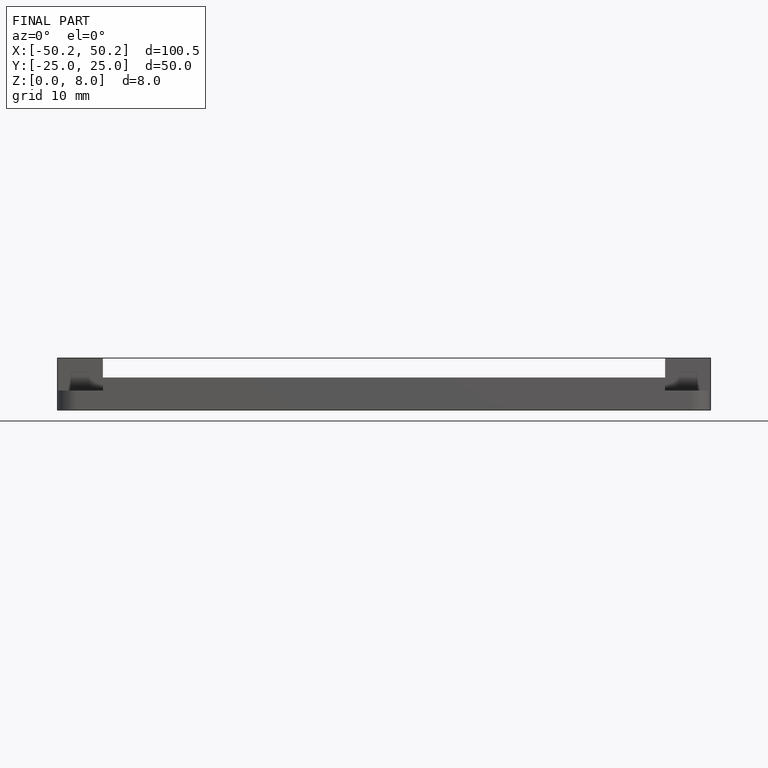
[diagram: finished part — front view with bounding-box wireframe]
